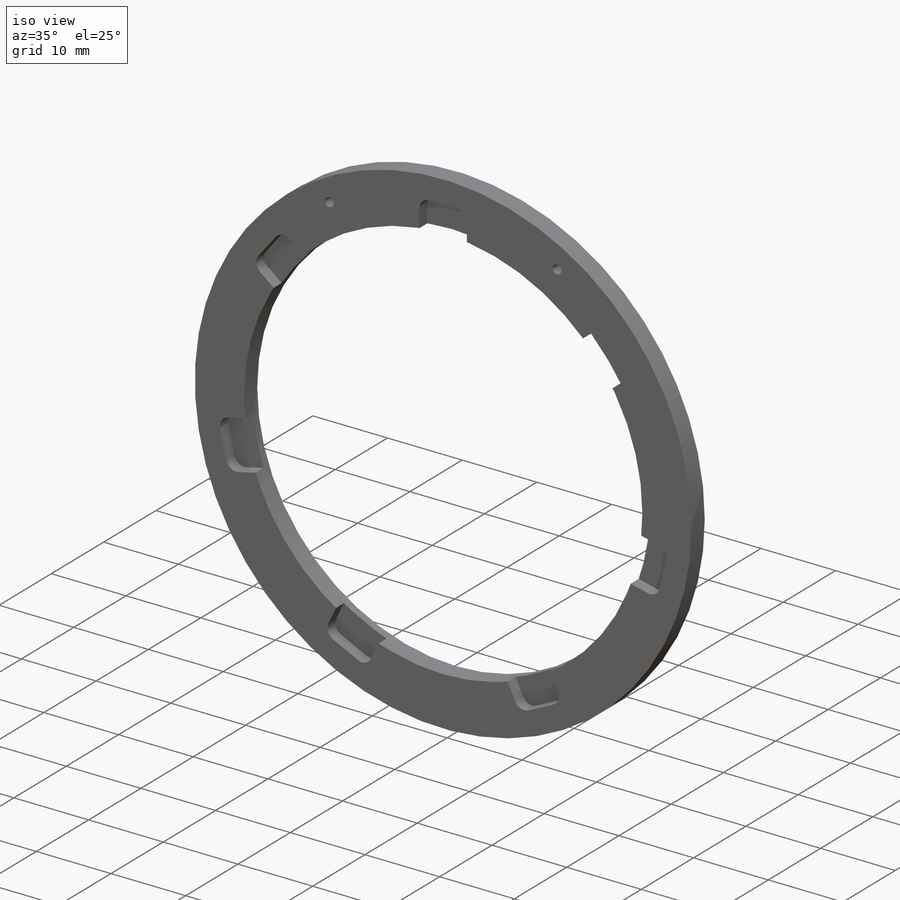
[diagram: iso view]
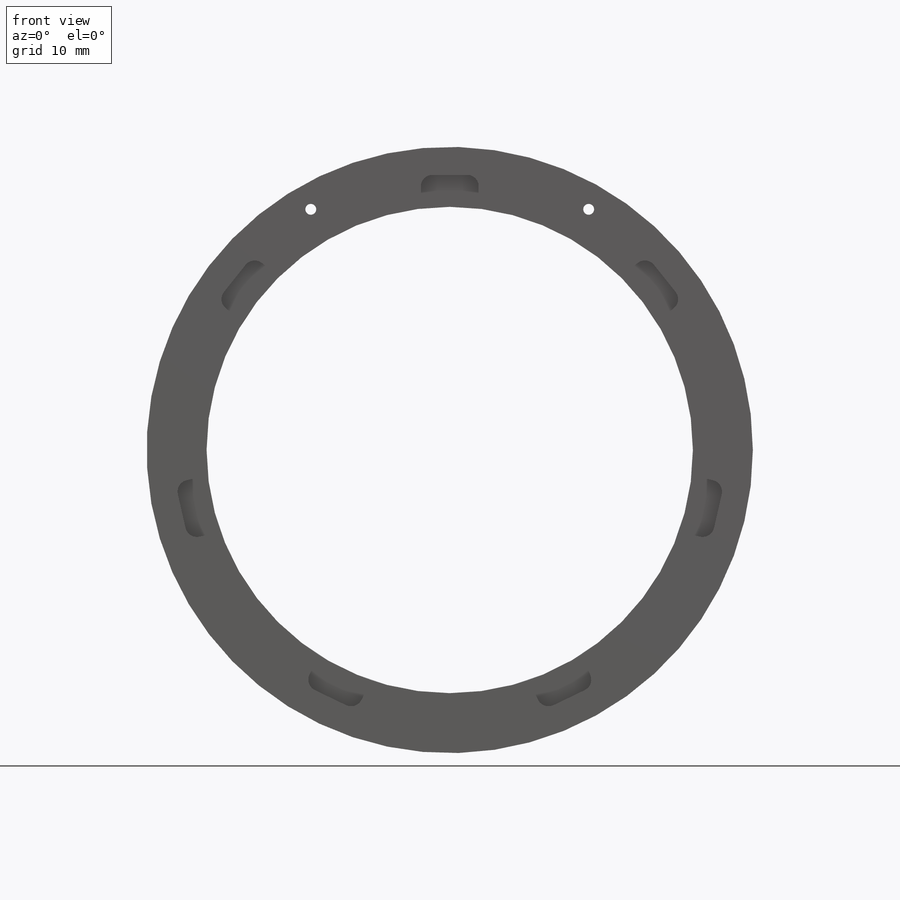
[diagram: front view]
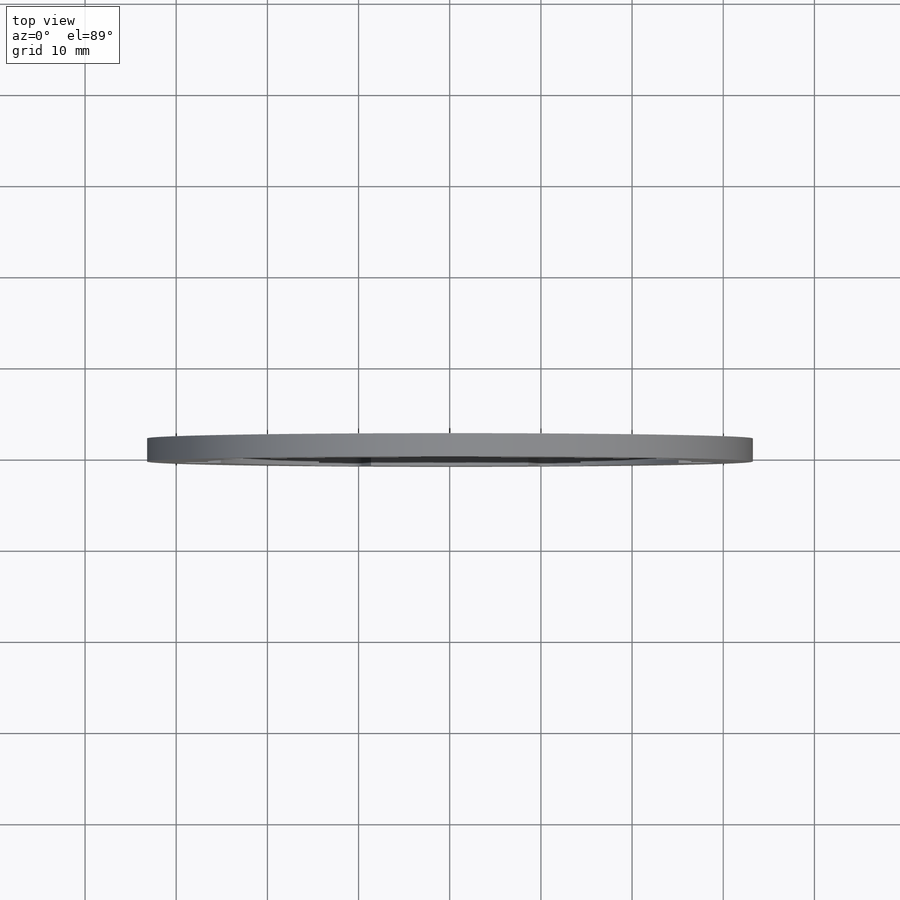
[diagram: top view]
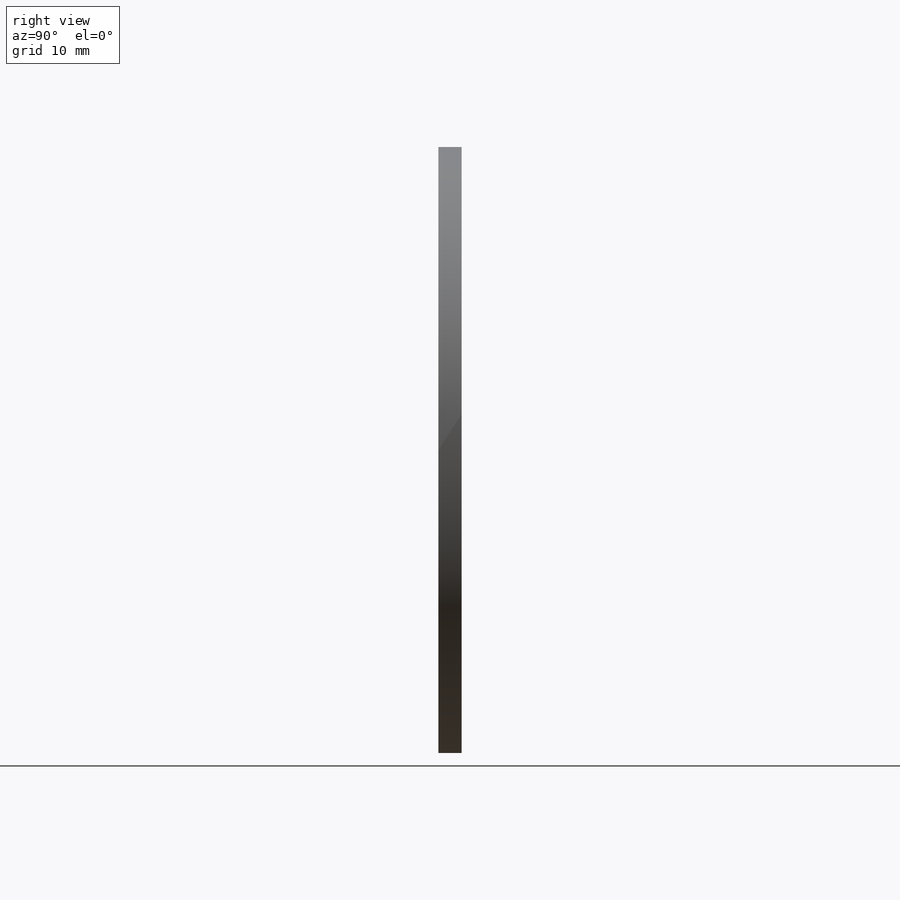
[diagram: right view]
SOLIDWORKS PART (.sldprt)
format: sldprt  version: not decoded by parser v0  size: 510,464 bytes
history: native  units: mm
features: sketch x16, cut_extrude x7, extrude x5, mirror x4, pattern_circular x2, hole x2, fillet x2, material x1 (+13 scaffold rows collapsed)
feature tree (52):
  scaffold x13  (default folders/planes/origin — collapsed)
  material  "Material <not specified>"
  sketch  "Sketch1"  dims[D5=53.34mm D6=88.9mm D1=74.549mm D2=74.549mm D3=37.2745mm D4=37.2745mm]
  extrude  "Boss-Extrude1"  Depth=0.762mm
  sketch  "Sketch2"  dims[c1.D3=6.604mm c1.D1=~84.128774mm c2.D1=45.0deg c2.D2=31.75mm c2.D3=31.75mm]
  cut_extrude  "Cut-Extrude1"  [1 undecoded]
  mirror  "Mirror1"
  mirror  "Mirror2"
  sketch  "Sketch3"  dims[c1.D1=69.85mm c1.D2=88.9mm c2.D1=53.34mm c2.D2=6.35mm]
  extrude  "Boss-Extrude2"  Depth=0.508mm
  sketch  "Sketch4"  dims[c1.D1=~75.241255mm c2.D1=30.0deg c2.D2=38.1mm]
  cut_extrude  "Cut-Extrude2"  [1 undecoded]
  pattern_circular  "CirPattern1"  Count=3 Angle=120deg
  sketch  "Sketch5"  dims[c1.D1=3.175mm c1.D2=1.27mm c1.D3=1.27mm c1.D4=31.75mm c1.D5=53.975mm c1.D6=0.635mm c1.D7=~1.709432mm c1.D8=0.635mm c1.D9=~1.417958mm c2.D7=0.635mm c2.D9=1.905mm c2.D1=1.905mm c2.D2=1.27mm c3.D1=1.27mm c3.D2=0.762mm c4.D1=~1.288805mm c4.D2=~0.704038mm]
  extrude  "Boss-Extrude3"  Depth=0.3175mm
  sketch  "Sketch7"  dims[c1.D4=1.27mm c1.D3=1.27mm c1.D1=15.875mm c1.D2=0.635mm c2.D3=48.26mm c2.D4=33.655mm c3.D3=38.1mm c3.D5=1.27mm c4.D3=5.08mm c4.D1=25.0825mm]
  extrude  "Boss-Extrude4"  Depth=0.3175mm
  sketch  "Sketch8"  dims[D1=1.27mm D2=0.762mm D3=0.508mm D4=0.508mm D5=0.508mm D6=2.54mm D7=0.762mm D8=0.508mm D9=2.54mm]
  extrude  "Boss-Extrude10"  Depth=0.3175mm
  sketch  "Sketch9"  dims[D1=58.42mm]
  cut_extrude  "Cut-Extrude3"  Depth=0.34925mm
  sketch  "Sketch11"  dims[c1.D1=6.35mm c1.D2=12.7mm c1.D3=25.4mm c2.D1=32.385mm c2.D4=12.7mm c2.D5=25.4mm c2.D6=12.7mm c2.D7=5.715mm c3.D1=25.4mm c3.D2=12.7mm c3.D3=~1.28412mm c4.D1=25.4mm c4.D2=12.7mm]
  cut_extrude  "Cut-Extrude5"  Depth=0.34925mm
  hole  "5/64 (0.07813) Diameter Hole1"  Diameter=1.984502mm Depth=25.4mm
  sketch  "Sketch13"  dims[D1=1.905mm D2=1.905mm D3=1.905mm D4=1.905mm]
  sketch  "Sketch12"  dims[hole-wizard template sketch: 46 standard entries collapsed; hole parameters kept: c15.Hole Dia.=~1.984502mm c15.Hole Depth=25.4mm c15.D3=~14.816244mm c15.Drill Angle=118.0deg]
  fillet  "Fillet1"  Radius=2.54mm
  mirror  "Mirror3"
  sketch  "Sketch14"  dims[D1=66.4972mm]
  cut_extrude  "Cut-Extrude6"  [1 undecoded]
  sketch  "Sketch15"  dims[c1.D1=6.35mm c1.D2=3.175mm c1.D3=22.86mm c1.D4=8.89mm c1.D5=31.75mm c2.D3=30.1625mm]
  cut_extrude  "Cut-Extrude7"  Depth=1.524mm
  fillet  "Fillet2"  Radius=1.27mm
  pattern_circular  "CirPattern2"  Count=7 Angle=360deg
  sketch  "Sketch16"  dims[c1.D3=0.0254mm c1.D1=~39.900672mm c2.D1=60.0deg c2.D2=30.48mm]
  cut_extrude  "Cut-Extrude8"  [1 undecoded]
  mirror  "Mirror4"
  hole  "#0-80 Tapped Hole3"  Diameter=1.19126mm Depth=4.064mm
  sketch  "Sketch20"
  sketch  "Sketch19"  dims[hole-wizard template sketch: 47 standard entries collapsed; hole parameters kept: c15.Tap Drill Depth=4.064mm c15.D3=~14.816244mm c15.Drill Angle=118.0deg]
decode coverage: 29 of 38 modeling features carry decoded parameters
note: ~ marks probable driven/reference dimensions
note: 4 parameter values undecoded
summary: no parameter record found for 4 features
note: suppression state not decoded; provenance and decode notes live in map.json
